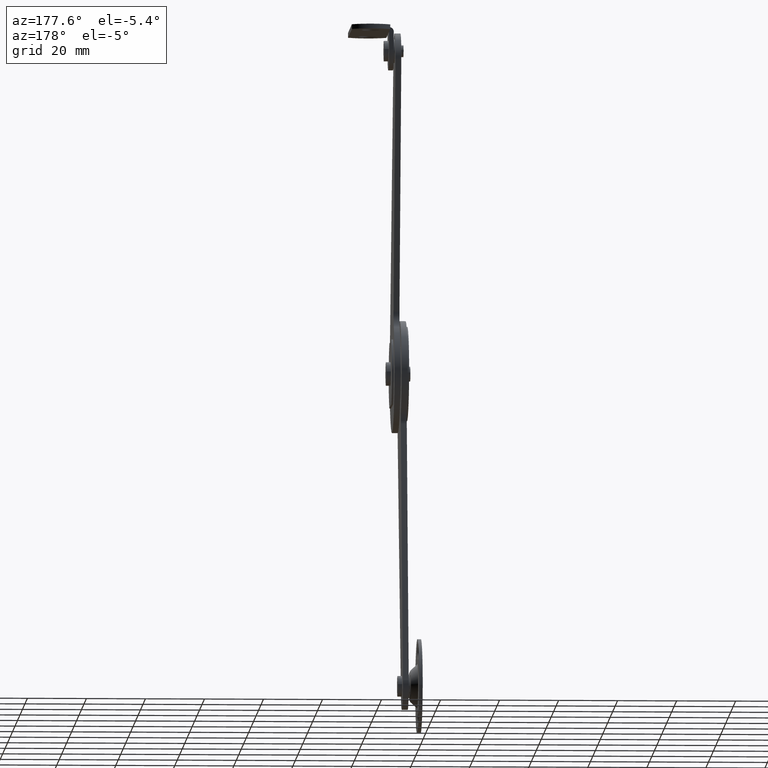
[diagram: clean part render]
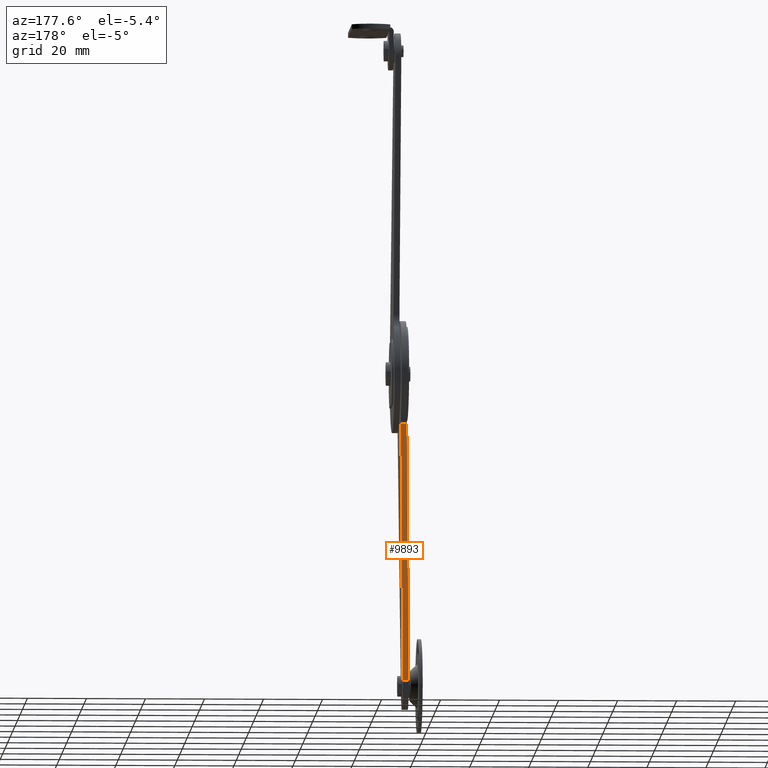
[diagram: same view with one face highlighted and labeled with its STEP entity id]
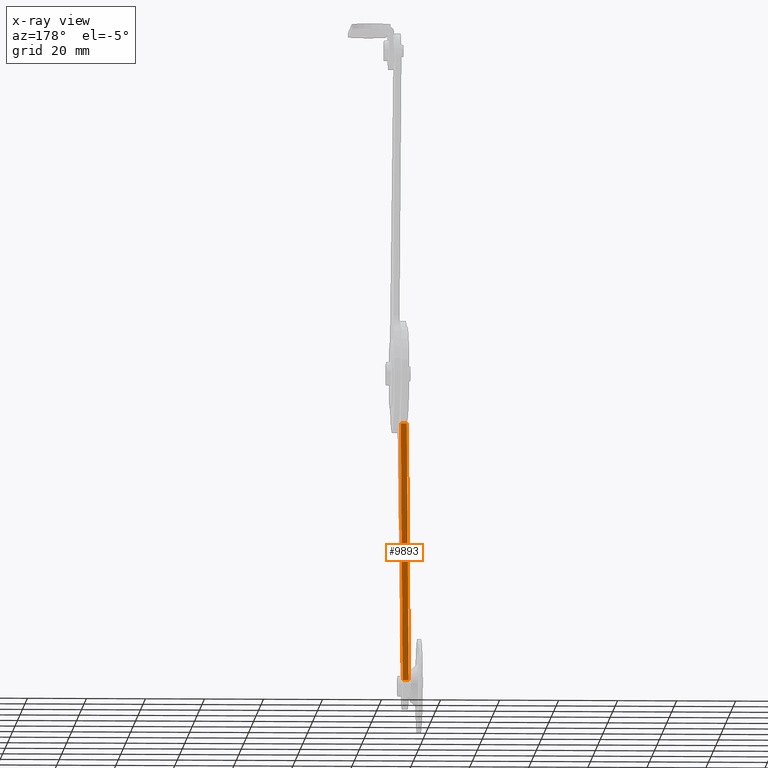
[diagram: x-ray of the same camera — body ghosted, the highlighted face saturated]
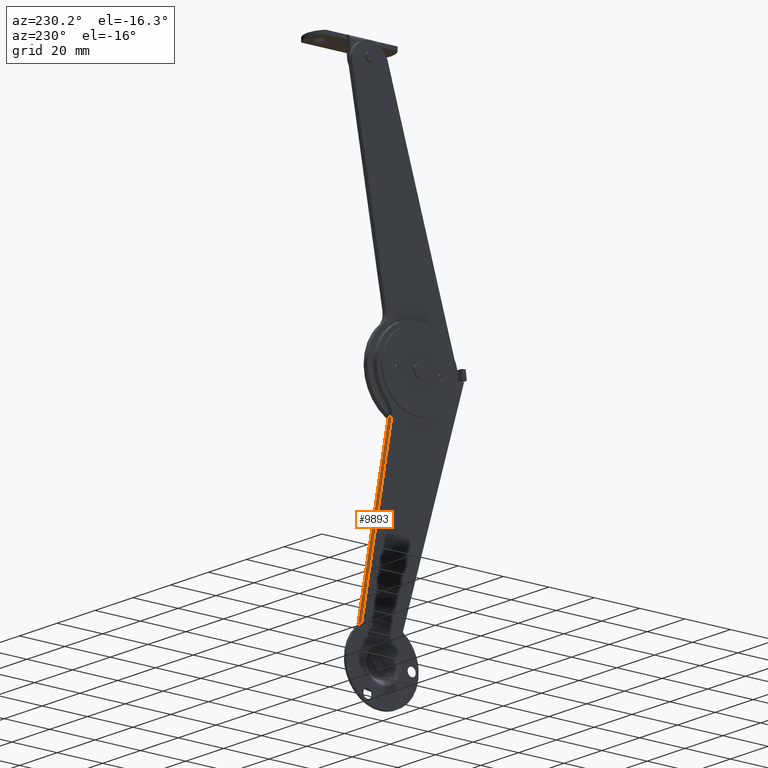
[diagram: same view with one face highlighted and labeled with its STEP entity id]
A machine part, auxiliary view. The second image highlights one B-rep face of the part: STEP entity #9893.
The next image is the same camera in x-ray: the body ghosted, the highlighted face saturated — about 0% of this face is hidden behind the body in this view.
A second angle (auxiliary view) of the same face is appended — the face is thin or edge-on in the first view.
In plain terms, the highlighted face is a freeform B-spline surface patch.
Its self-contained STEP definition (entity closure, byte-faithful):
#9632=CARTESIAN_POINT('',(6.399994000000130,7.877594000000000,-106.604660000000000));
#9633=VERTEX_POINT('',#9632);
#9639=CARTESIAN_POINT('',(6.399994000000130,-7.834135366304619,-17.828890237279001));
#9640=VERTEX_POINT('',#9639);
#9641=CARTESIAN_POINT('',(6.399994000000130,7.877594000000000,-106.604660000000000));
#9642=CARTESIAN_POINT('',(6.399994000000130,-7.834135366304619,-17.828890237279001));
#9643=QUASI_UNIFORM_CURVE('',1,(#9641,#9642),.UNSPECIFIED.,.F.,.U.);
#9644=EDGE_CURVE('',#9633,#9640,#9643,.T.);
#9738=CARTESIAN_POINT('',(4.399994000000130,-7.834135366304619,-17.828890237279001));
#9739=VERTEX_POINT('',#9738);
#9753=CARTESIAN_POINT('',(4.399994000000130,7.877594000000000,-106.604660000000000));
#9754=VERTEX_POINT('',#9753);
#9755=CARTESIAN_POINT('',(4.399994000000130,7.877594000000000,-106.604660000000000));
#9756=CARTESIAN_POINT('',(4.399994000000130,-7.834135366304619,-17.828890237279001));
#9757=QUASI_UNIFORM_CURVE('',1,(#9755,#9756),.UNSPECIFIED.,.F.,.U.);
#9758=EDGE_CURVE('',#9754,#9739,#9757,.T.);
#9868=CARTESIAN_POINT('',(4.399994000000130,-7.834135366304619,-17.828890237279001));
#9869=CARTESIAN_POINT('',(6.399994000000130,-7.834135366304619,-17.828890237279001));
#9870=QUASI_UNIFORM_CURVE('',1,(#9868,#9869),.UNSPECIFIED.,.F.,.U.);
#9871=EDGE_CURVE('',#9739,#9640,#9870,.T.);
#9878=CARTESIAN_POINT('',(4.300093898374509,8.662394851394545,-111.039009527583300));
#9879=CARTESIAN_POINT('',(4.300093898374509,-8.618936639120651,-13.394538328544069));
#9880=CARTESIAN_POINT('',(6.499893904930424,8.662394851394545,-111.039009527583300));
#9881=CARTESIAN_POINT('',(6.499893904930424,-8.618936639120651,-13.394538328544069));
#9882=B_SPLINE_SURFACE_WITH_KNOTS('',1,1,((#9878,#9880),(#9879,#9881)),.UNSPECIFIED.,.F.,.F.,.U.,(2,2),(2,2),(0.0,99.161924012319744),(0.0,2.199800006555916),.UNSPECIFIED.);
#9883=ORIENTED_EDGE('',*,*,#9644,.F.);
#9884=CARTESIAN_POINT('',(4.399994000000130,7.877594000000000,-106.604660000000000));
#9885=CARTESIAN_POINT('',(6.399994000000130,7.877594000000000,-106.604660000000000));
#9886=QUASI_UNIFORM_CURVE('',1,(#9884,#9885),.UNSPECIFIED.,.F.,.U.);
#9887=EDGE_CURVE('',#9754,#9633,#9886,.T.);
#9888=ORIENTED_EDGE('',*,*,#9887,.F.);
#9889=ORIENTED_EDGE('',*,*,#9758,.T.);
#9890=ORIENTED_EDGE('',*,*,#9871,.T.);
#9891=EDGE_LOOP('',(#9883,#9888,#9889,#9890));
#9892=FACE_OUTER_BOUND('',#9891,.T.);
#9893=ADVANCED_FACE('',(#9892),#9882,.T.);